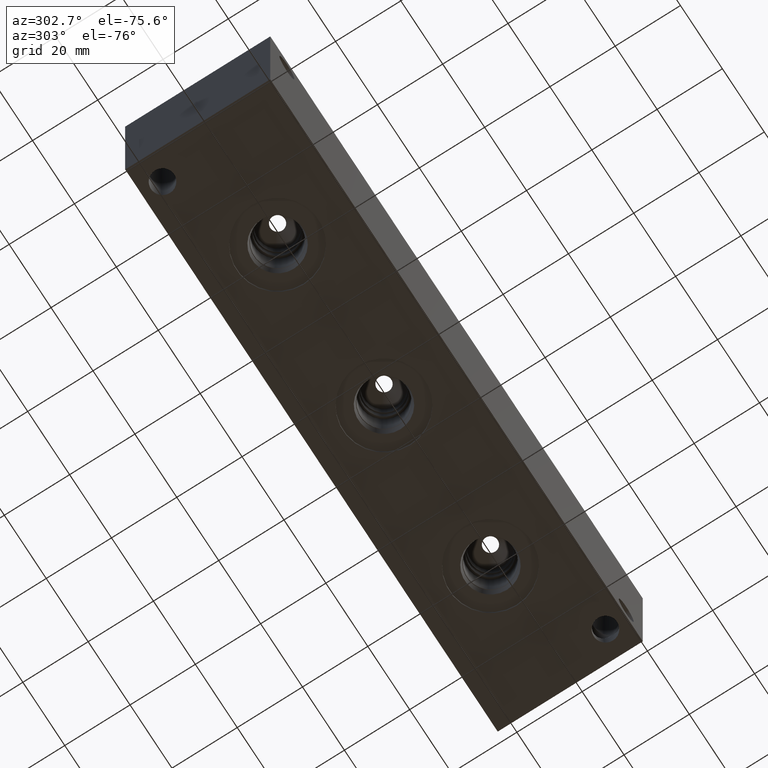
[diagram: clean part render]
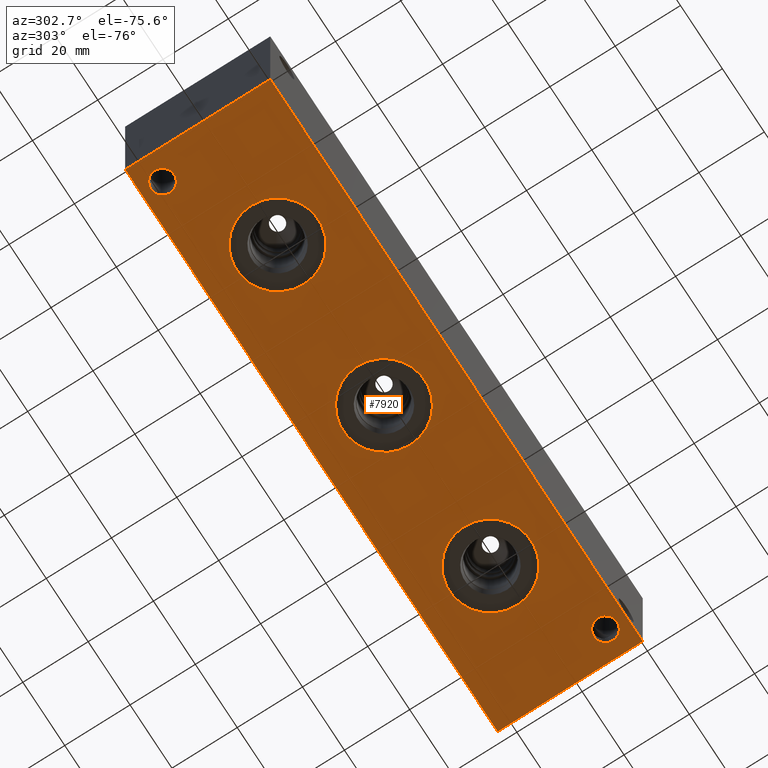
[diagram: same view with one face highlighted and labeled with its STEP entity id]
A machine part, auxiliary view. The second image highlights one B-rep face of the part: STEP entity #7920.
In plain terms, the highlighted planar face has unit normal (0, 0, 1).
Its self-contained STEP definition (entity closure, byte-faithful):
#100=CIRCLE('',#8168,3.5687);
#101=CIRCLE('',#8170,3.5687);
#102=CIRCLE('',#8172,12.5095);
#103=CIRCLE('',#8173,12.5095);
#113=CIRCLE('',#8188,12.5095);
#114=CIRCLE('',#8189,12.5095);
#152=CIRCLE('',#8250,12.5095);
#153=CIRCLE('',#8251,12.5095);
#262=FACE_BOUND('',#1346,.T.);
#263=FACE_BOUND('',#1347,.T.);
#264=FACE_BOUND('',#1348,.T.);
#265=FACE_BOUND('',#1349,.T.);
#266=FACE_BOUND('',#1350,.T.);
#486=PLANE('',#8353);
#891=FACE_OUTER_BOUND('',#1345,.T.);
#1345=EDGE_LOOP('',(#7064,#7065,#7066,#7067));
#1346=EDGE_LOOP('',(#7068));
#1347=EDGE_LOOP('',(#7069));
#1348=EDGE_LOOP('',(#7070,#7071));
#1349=EDGE_LOOP('',(#7072,#7073));
#1350=EDGE_LOOP('',(#7074,#7075));
#2062=LINE('',#13740,#2781);
#2065=LINE('',#13745,#2784);
#2067=LINE('',#13749,#2786);
#2069=LINE('',#13752,#2788);
#2781=VECTOR('',#9895,10.);
#2784=VECTOR('',#9900,10.);
#2786=VECTOR('',#9904,10.);
#2788=VECTOR('',#9908,10.);
#3653=VERTEX_POINT('',#13388);
#3654=VERTEX_POINT('',#13392);
#3655=VERTEX_POINT('',#13396);
#3656=VERTEX_POINT('',#13397);
#3666=VERTEX_POINT('',#13427);
#3667=VERTEX_POINT('',#13428);
#3705=VERTEX_POINT('',#13547);
#3706=VERTEX_POINT('',#13548);
#3766=VERTEX_POINT('',#13738);
#3767=VERTEX_POINT('',#13739);
#3768=VERTEX_POINT('',#13744);
#3769=VERTEX_POINT('',#13748);
#4696=EDGE_CURVE('',#3653,#3653,#100,.T.);
#4698=EDGE_CURVE('',#3654,#3654,#101,.T.);
#4699=EDGE_CURVE('',#3655,#3656,#102,.T.);
#4700=EDGE_CURVE('',#3656,#3655,#103,.T.);
#4714=EDGE_CURVE('',#3666,#3667,#113,.T.);
#4715=EDGE_CURVE('',#3667,#3666,#114,.T.);
#4772=EDGE_CURVE('',#3705,#3706,#152,.T.);
#4773=EDGE_CURVE('',#3706,#3705,#153,.T.);
#4864=EDGE_CURVE('',#3766,#3767,#2062,.T.);
#4867=EDGE_CURVE('',#3768,#3766,#2065,.T.);
#4869=EDGE_CURVE('',#3769,#3768,#2067,.T.);
#4871=EDGE_CURVE('',#3767,#3769,#2069,.T.);
#7064=ORIENTED_EDGE('',*,*,#4871,.F.);
#7065=ORIENTED_EDGE('',*,*,#4864,.F.);
#7066=ORIENTED_EDGE('',*,*,#4867,.F.);
#7067=ORIENTED_EDGE('',*,*,#4869,.F.);
#7068=ORIENTED_EDGE('',*,*,#4696,.T.);
#7069=ORIENTED_EDGE('',*,*,#4698,.T.);
#7070=ORIENTED_EDGE('',*,*,#4699,.T.);
#7071=ORIENTED_EDGE('',*,*,#4700,.T.);
#7072=ORIENTED_EDGE('',*,*,#4714,.T.);
#7073=ORIENTED_EDGE('',*,*,#4715,.T.);
#7074=ORIENTED_EDGE('',*,*,#4772,.T.);
#7075=ORIENTED_EDGE('',*,*,#4773,.T.);
#7920=ADVANCED_FACE('',(#891,#262,#263,#264,#265,#266),#486,.F.);
#8168=AXIS2_PLACEMENT_3D('',#13390,#9478,#9479);
#8170=AXIS2_PLACEMENT_3D('',#13394,#9483,#9484);
#8172=AXIS2_PLACEMENT_3D('',#13398,#9487,#9488);
#8173=AXIS2_PLACEMENT_3D('',#13399,#9489,#9490);
#8188=AXIS2_PLACEMENT_3D('',#13429,#9523,#9524);
#8189=AXIS2_PLACEMENT_3D('',#13430,#9525,#9526);
#8250=AXIS2_PLACEMENT_3D('',#13549,#9666,#9667);
#8251=AXIS2_PLACEMENT_3D('',#13550,#9668,#9669);
#8353=AXIS2_PLACEMENT_3D('',#13754,#9911,#9912);
#9478=DIRECTION('center_axis',(0.,0.,1.));
#9479=DIRECTION('ref_axis',(1.,0.,0.));
#9483=DIRECTION('center_axis',(0.,0.,1.));
#9484=DIRECTION('ref_axis',(1.,0.,0.));
#9487=DIRECTION('center_axis',(0.,0.,1.));
#9488=DIRECTION('ref_axis',(1.,0.,0.));
#9489=DIRECTION('center_axis',(0.,0.,1.));
#9490=DIRECTION('ref_axis',(1.,0.,0.));
#9523=DIRECTION('center_axis',(0.,0.,1.));
#9524=DIRECTION('ref_axis',(1.,0.,0.));
#9525=DIRECTION('center_axis',(0.,0.,1.));
#9526=DIRECTION('ref_axis',(1.,0.,0.));
#9666=DIRECTION('center_axis',(0.,0.,1.));
#9667=DIRECTION('ref_axis',(1.,0.,0.));
#9668=DIRECTION('center_axis',(0.,0.,1.));
#9669=DIRECTION('ref_axis',(1.,0.,0.));
#9895=DIRECTION('',(0.,-1.,0.));
#9900=DIRECTION('',(-1.,0.,0.));
#9904=DIRECTION('',(0.,1.,0.));
#9908=DIRECTION('',(1.,0.,0.));
#9911=DIRECTION('center_axis',(0.,0.,1.));
#9912=DIRECTION('ref_axis',(1.,0.,0.));
#13388=CARTESIAN_POINT('',(4.3561,38.1,0.));
#13390=CARTESIAN_POINT('Origin',(7.9248,38.1,0.));
#13392=CARTESIAN_POINT('',(166.3065,6.35,0.));
#13394=CARTESIAN_POINT('Origin',(169.8752,6.35,0.));
#13396=CARTESIAN_POINT('',(152.2095,22.225,0.));
#13397=CARTESIAN_POINT('',(127.1905,22.225,0.));
#13398=CARTESIAN_POINT('Origin',(139.7,22.225,0.));
#13399=CARTESIAN_POINT('Origin',(139.7,22.225,0.));
#13427=CARTESIAN_POINT('',(101.4095,22.225,0.));
#13428=CARTESIAN_POINT('',(76.3905,22.225,0.));
#13429=CARTESIAN_POINT('Origin',(88.9,22.225,0.));
#13430=CARTESIAN_POINT('Origin',(88.9,22.225,0.));
#13547=CARTESIAN_POINT('',(50.6095,22.225,0.));
#13548=CARTESIAN_POINT('',(25.5905,22.225,0.));
#13549=CARTESIAN_POINT('Origin',(38.1,22.225,0.));
#13550=CARTESIAN_POINT('Origin',(38.1,22.225,0.));
#13738=CARTESIAN_POINT('',(0.,44.45,0.));
#13739=CARTESIAN_POINT('',(0.,0.,0.));
#13740=CARTESIAN_POINT('',(0.,44.45,0.));
#13744=CARTESIAN_POINT('',(177.8,44.45,0.));
#13745=CARTESIAN_POINT('',(177.8,44.45,0.));
#13748=CARTESIAN_POINT('',(177.8,0.,0.));
#13749=CARTESIAN_POINT('',(177.8,0.,0.));
#13752=CARTESIAN_POINT('',(0.,0.,0.));
#13754=CARTESIAN_POINT('Origin',(88.9,22.225,0.));